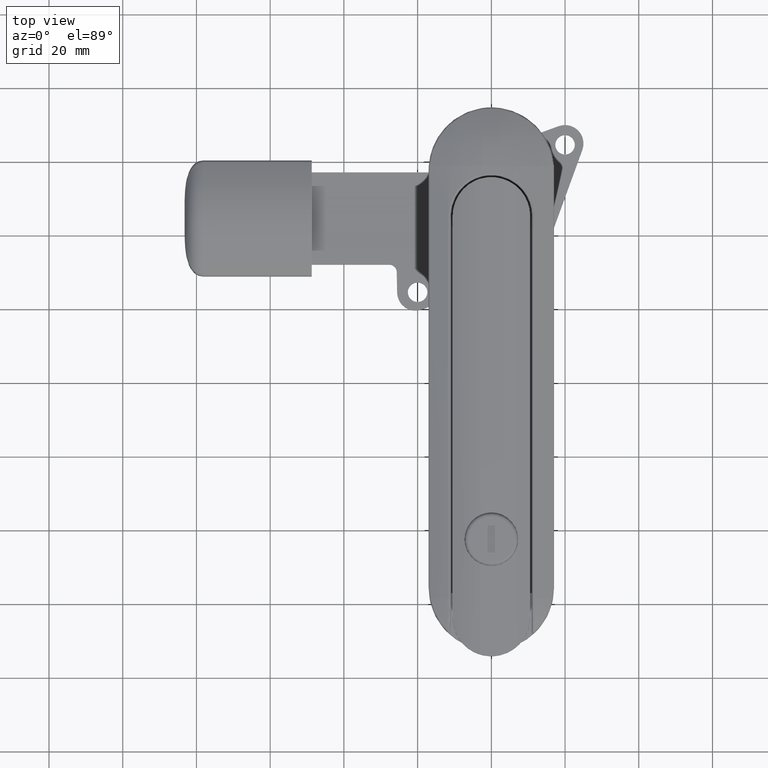
[diagram: clean part render]
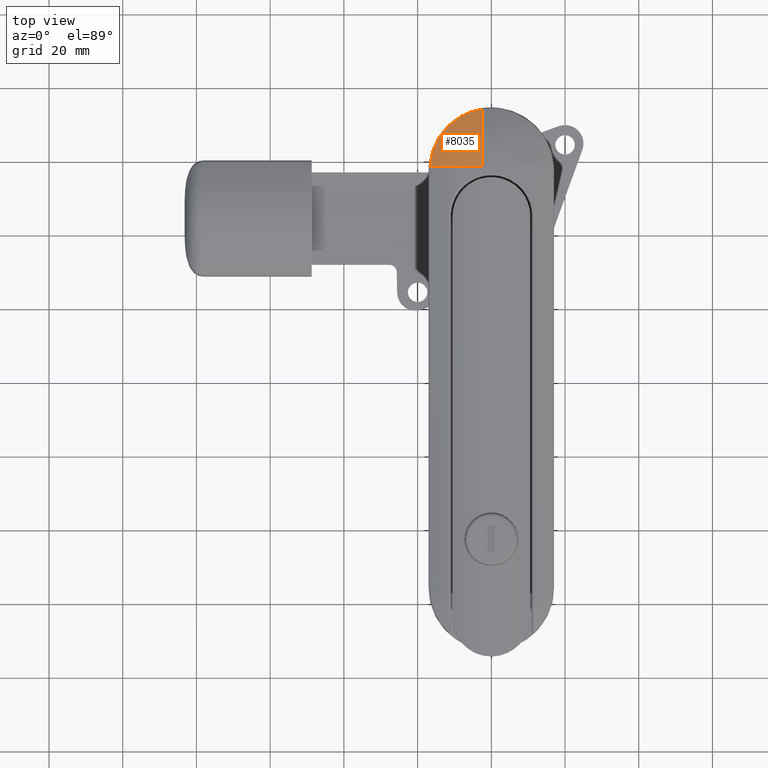
[diagram: same view with one face highlighted and labeled with its STEP entity id]
A machine part, top view. The second image highlights one B-rep face of the part: STEP entity #8035.
In plain terms, the highlighted face is a freeform B-spline surface patch.
Its self-contained STEP definition (entity closure, byte-faithful):
#195=(
BOUNDED_SURFACE()
B_SPLINE_SURFACE(2,2,((#12739,#12740,#12741),(#12742,#12743,#12744),(#12745,
#12746,#12747)),.UNSPECIFIED.,.F.,.F.,.F.)
B_SPLINE_SURFACE_WITH_KNOTS((3,3),(3,3),(-0.462871293813428,6.98567296393357E-17),
(2.66697298073395,3.14159265358979),.UNSPECIFIED.)
GEOMETRIC_REPRESENTATION_ITEM()
RATIONAL_B_SPLINE_SURFACE(((1.,0.97197391825269,1.),(0.973338096488352,
0.946059243428398,0.973338096488352),(1.,0.97197391825269,1.)))
REPRESENTATION_ITEM('')
SURFACE()
);
#448=B_SPLINE_CURVE_WITH_KNOTS('',3,(#11981,#11982,#11983,#11984,#11985,
#11986),.UNSPECIFIED.,.F.,.F.,(4,1,1,4),(8.31030233735599E-16,0.640646476741683,
1.28129295348337,2.24226266859589),.UNSPECIFIED.);
#740=CIRCLE('',#8566,31.7857142857143);
#750=CIRCLE('',#8596,33.9999999999999);
#1148=FACE_OUTER_BOUND('',#1649,.T.);
#1649=EDGE_LOOP('',(#5739,#5740,#5741));
#3398=VERTEX_POINT('',#11931);
#3400=VERTEX_POINT('',#11972);
#3458=VERTEX_POINT('',#12594);
#4202=EDGE_CURVE('',#3398,#3400,#448,.T.);
#4298=EDGE_CURVE('',#3458,#3398,#740,.T.);
#4340=EDGE_CURVE('',#3400,#3458,#750,.T.);
#5739=ORIENTED_EDGE('',*,*,#4202,.F.);
#5740=ORIENTED_EDGE('',*,*,#4298,.F.);
#5741=ORIENTED_EDGE('',*,*,#4340,.F.);
#8035=ADVANCED_FACE('',(#1148),#195,.F.);
#8566=AXIS2_PLACEMENT_3D('',#12596,#9614,#9615);
#8596=AXIS2_PLACEMENT_3D('',#12738,#9705,#9706);
#9614=DIRECTION('center_axis',(0.,-1.,0.));
#9615=DIRECTION('ref_axis',(-0.456179775280899,0.,0.889887640449438));
#9705=DIRECTION('center_axis',(1.,0.,0.));
#9706=DIRECTION('ref_axis',(0.,0.470588235294119,0.88235294117647));
#11931=CARTESIAN_POINT('',(-16.6929286436993,57.65,3.15531961194707));
#11972=CARTESIAN_POINT('',(-2.5,73.1880065262747,2.74186424791706));
#11981=CARTESIAN_POINT('Ctrl Pts',(-16.6929286436993,57.65,3.15531961194707));
#11982=CARTESIAN_POINT('Ctrl Pts',(-16.5614967979977,59.8121430552289,3.22090804358654));
#11983=CARTESIAN_POINT('Ctrl Pts',(-15.4465187591441,64.0821953131349,3.31223100883007));
#11984=CARTESIAN_POINT('Ctrl Pts',(-10.8090946238405,70.2781912297775,3.26986182444615));
#11985=CARTESIAN_POINT('Ctrl Pts',(-5.70714976519922,72.6969102505146,2.99418523829106));
#11986=CARTESIAN_POINT('Ctrl Pts',(-2.5,73.1880065262747,2.74186424791706));
#12594=CARTESIAN_POINT('',(-2.5,57.65,6.5));
#12596=CARTESIAN_POINT('Origin',(-2.5,57.65,-25.2857142857143));
#12738=CARTESIAN_POINT('Origin',(-2.5,57.65,-27.4999999999999));
#12739=CARTESIAN_POINT('Ctrl Pts',(-16.6929286436993,71.6594869469256,-0.233117229970219));
#12740=CARTESIAN_POINT('Ctrl Pts',(-16.6929286436993,65.0645195157676,3.15531961194707));
#12741=CARTESIAN_POINT('Ctrl Pts',(-16.6929286436993,57.65,3.15531961194707));
#12742=CARTESIAN_POINT('Ctrl Pts',(-9.99056504549387,73.1880065262747,2.74186424791706));
#12743=CARTESIAN_POINT('Ctrl Pts',(-9.99056504549387,65.8734883448369,6.5));
#12744=CARTESIAN_POINT('Ctrl Pts',(-9.99056504549387,57.65,6.5));
#12745=CARTESIAN_POINT('Ctrl Pts',(-2.5,73.1880065262747,2.74186424791706));
#12746=CARTESIAN_POINT('Ctrl Pts',(-2.5,65.8734883448369,6.5));
#12747=CARTESIAN_POINT('Ctrl Pts',(-2.5,57.65,6.5));